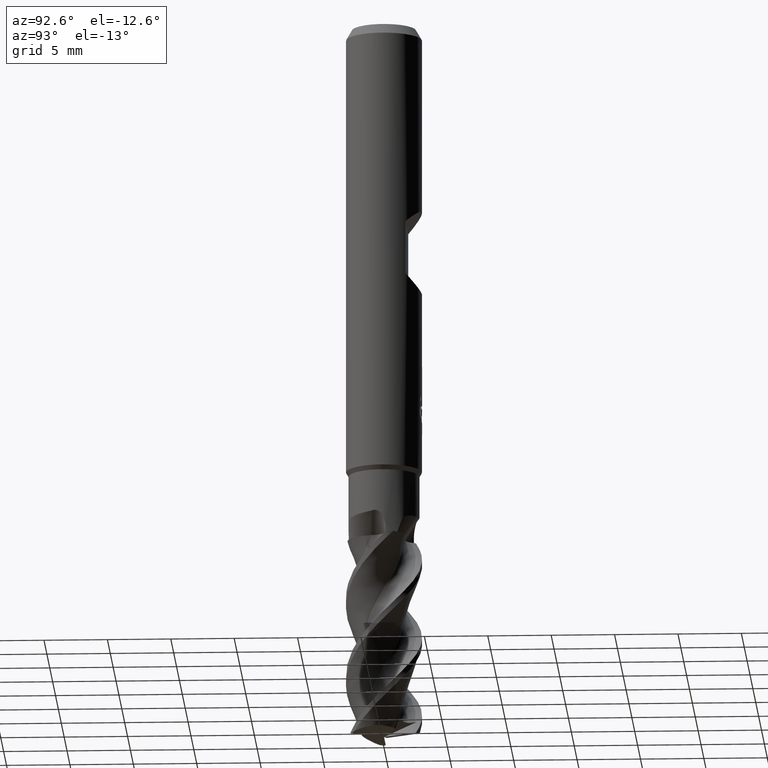
[diagram: clean part render]
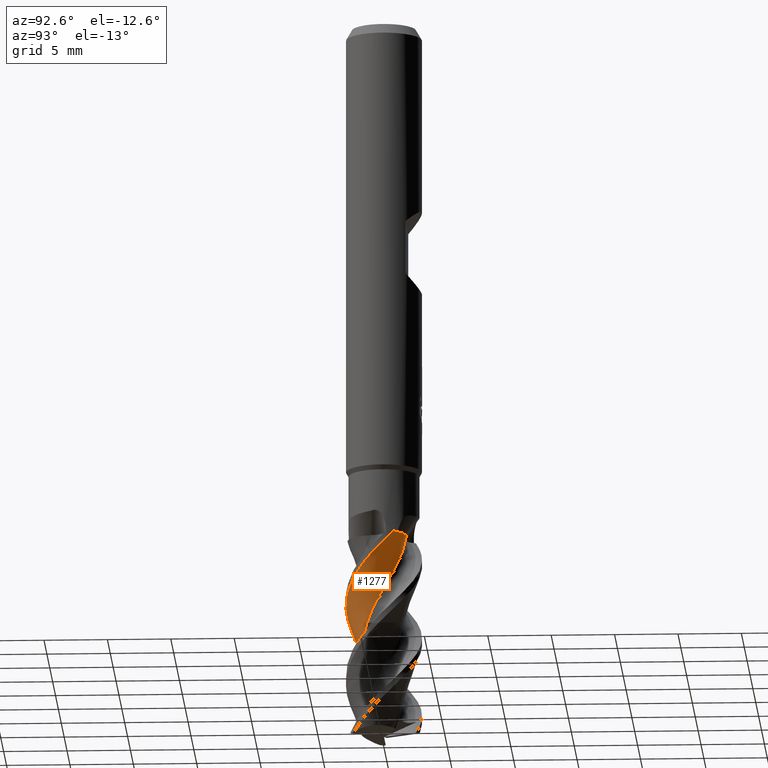
[diagram: same view with one face highlighted and labeled with its STEP entity id]
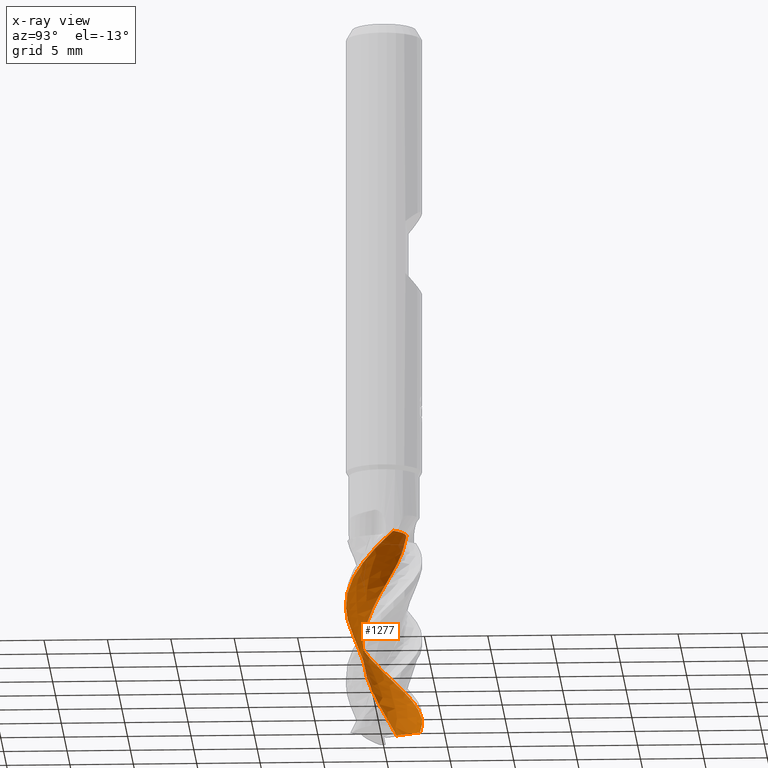
[diagram: x-ray of the same camera — body ghosted, the highlighted face saturated]
A machine part, auxiliary view. The second image highlights one B-rep face of the part: STEP entity #1277.
The next image is the same camera in x-ray: the body ghosted, the highlighted face saturated — about 0% of this face is hidden behind the body in this view.
In plain terms, the highlighted face is a freeform B-spline surface patch.
Its self-contained STEP definition (entity closure, byte-faithful):
#567=EDGE_CURVE('',#783,#701,#1442,.T.);
#569=VERTEX_POINT('',#1444);
#619=EDGE_CURVE('',#1195,#1003,#1496,.T.);
#651=VERTEX_POINT('',#1532);
#701=VERTEX_POINT('',#1587);
#781=EDGE_CURVE('',#569,#651,#1677,.T.);
#783=VERTEX_POINT('',#1679);
#825=EDGE_CURVE('',#1003,#783,#1724,.T.);
#843=EDGE_CURVE('',#701,#651,#1745,.T.);
#867=VERTEX_POINT('',#1773);
#913=EDGE_CURVE('',#867,#1195,#1820,.T.);
#1003=VERTEX_POINT('',#1919);
#1041=EDGE_CURVE('',#569,#867,#1961,.T.);
#1195=VERTEX_POINT('',#2130);
#1277=ADVANCED_FACE('',(#2218),#2219,.T.);
#1442=B_SPLINE_CURVE_WITH_KNOTS('',3,(#3613,#3614,#3615,#3616,#3617,#3618,#3619,#3620,#3621,#3622),.UNSPECIFIED.,.F.,.F.,(4,2,2,2,4),(0.0,0.96895475082892,1.93785581803532,2.65426855663962,3.37066355971909),.UNSPECIFIED.);
#1444=CARTESIAN_POINT('',(-1.42039159701697,0.926261467715888,-56.5825370332337));
#1496=B_SPLINE_CURVE_WITH_KNOTS('',3,(#3896,#3897,#3898,#3899,#3900,#3901,#3902,#3903,#3904,#3905,#3906,#3907,#3908,#3909,#3910,#3911,#3912,#3913,#3914,#3915,#3916,#3917,#3918,#3919,#3920,#3921,#3922,#3923,#3924,#3925,#3926,#3927,#3928,#3929,#3930,#3931,#3932,#3933,#3934,#3935,#3936,#3937,#3938,#3939,#3940,#3941),.UNSPECIFIED.,.F.,.F.,(4,2,2,2,2,2,2,2,2,2,2,2,2,2,2,2,2,2,2,2,2,2,4),(0.0,1.18681386617655,2.08772712133419,2.87410627861396,3.44717918369471,4.20396627043055,4.66828894833923,5.19515368788471,5.63234741721775,5.92520156107975,6.34373032075256,6.59047059806791,6.90376372219082,7.21372972468428,7.46673795894511,7.61161215169149,7.91120142191938,8.13760228375584,8.35933990972439,8.55413478097854,8.85597264351646,9.00915213299087,9.15674801587011),.UNSPECIFIED.);
#1532=CARTESIAN_POINT('',(0.160947652748152,1.68794513397882,-41.0));
#1587=CARTESIAN_POINT('',(0.577222067091525,1.78303410013697,-41.0));
#1677=B_SPLINE_CURVE_WITH_KNOTS('',3,(#5020,#5021,#5022,#5023,#5024,#5025,#5026,#5027,#5028,#5029,#5030,#5031,#5032,#5033,#5034,#5035,#5036,#5037,#5038,#5039,#5040,#5041,#5042,#5043,#5044,#5045,#5046,#5047,#5048,#5049,#5050,#5051,#5052,#5053,#5054,#5055,#5056,#5057,#5058,#5059,#5060,#5061,#5062,#5063),.UNSPECIFIED.,.F.,.F.,(4,2,2,2,2,2,2,2,2,2,2,2,2,2,2,2,2,2,2,2,2,4),(0.0,0.885017349020731,1.38662605880188,2.08791541357296,3.01686208175831,4.18212711694424,6.50876971542661,7.50163395965148,8.55531635972764,9.48888412599825,10.5090480673792,10.9737774729431,11.7676676761723,12.8348264052733,13.972505991047,16.3958470813623,17.0069153292885,19.3091950924024,20.4379834028688,22.4752885034887,23.5431473310724,24.567031306914),.UNSPECIFIED.);
#1679=CARTESIAN_POINT('',(2.87719421331568,0.849207553465416,-41.0));
#1724=B_SPLINE_CURVE_WITH_KNOTS('',3,(#5435,#5436,#5437,#5438,#5439,#5440,#5441,#5442,#5443,#5444,#5445,#5446,#5447,#5448,#5449,#5450,#5451,#5452,#5453,#5454,#5455,#5456,#5457,#5458,#5459,#5460,#5461,#5462,#5463,#5464,#5465,#5466,#5467,#5468,#5469,#5470,#5471,#5472,#5473,#5474,#5475,#5476,#5477,#5478,#5479,#5480),.UNSPECIFIED.,.F.,.F.,(4,2,2,2,2,2,2,2,2,2,2,2,2,2,2,2,2,2,2,2,2,2,4),(0.0,1.18681386617655,2.08772712133419,2.87410627861396,3.44717918369471,4.20396627043055,4.66828894833923,5.19515368788471,5.63234741721775,5.92520156107975,6.34373032075256,6.59047059806791,6.90376372219082,7.21372972468428,7.46673795894511,7.61161215169149,7.91120142191938,8.13760228375584,8.35933990972439,8.55413478097854,8.85597264351646,9.00915213299087,9.15674801587011),.UNSPECIFIED.);
#1745=B_SPLINE_CURVE_WITH_KNOTS('',3,(#5918,#5919,#5920,#5921,#5922,#5923,#5924,#5925,#5926,#5927),.UNSPECIFIED.,.F.,.F.,(4,2,2,2,4),(0.0,0.96895475082892,1.93785581803532,2.65426855663962,3.37066355971909),.UNSPECIFIED.);
#1773=CARTESIAN_POINT('',(0.90839550069056,2.85916329671705,-56.9238124955848));
#1820=B_SPLINE_CURVE_WITH_KNOTS('',3,(#6163,#6164,#6165,#6166,#6167,#6168,#6169,#6170,#6171,#6172,#6173,#6174,#6175,#6176,#6177,#6178,#6179,#6180,#6181,#6182,#6183,#6184,#6185,#6186,#6187,#6188,#6189,#6190,#6191,#6192,#6193,#6194,#6195,#6196,#6197,#6198,#6199,#6200,#6201,#6202,#6203,#6204,#6205,#6206,#6207,#6208),.UNSPECIFIED.,.F.,.F.,(4,2,2,2,2,2,2,2,2,2,2,2,2,2,2,2,2,2,2,2,2,2,4),(0.0,1.18681386617655,2.08772712133419,2.87410627861396,3.44717918369471,4.20396627043055,4.66828894833923,5.19515368788471,5.63234741721775,5.92520156107975,6.34373032075256,6.59047059806791,6.90376372219082,7.21372972468428,7.46673795894511,7.61161215169149,7.91120142191938,8.13760228375584,8.35933990972439,8.55413478097854,8.85597264351646,9.00915213299087,9.15674801587011),.UNSPECIFIED.);
#1919=CARTESIAN_POINT('',(-2.02687034781462E-014,-2.9999348666612,-46.5786657918422));
#1961=B_SPLINE_CURVE_WITH_KNOTS('',3,(#7152,#7153,#7154,#7155,#7156,#7157,#7158,#7159,#7160,#7161,#7162,#7163),.UNSPECIFIED.,.F.,.F.,(4,2,2,2,2,4),(0.0,0.891469568936721,1.72245221178662,2.60084395187054,3.22879166051602,3.91498193644743),.UNSPECIFIED.);
#2130=CARTESIAN_POINT('',(4.43067321431995E-015,2.9999937512498,-56.0001999676261));
#2218=FACE_OUTER_BOUND('',#9154,.T.);
#2219=B_SPLINE_SURFACE_WITH_KNOTS('',3,3,((#9155,#9156,#9157,#9158,#9159,#9160,#9161,#9162,#9163,#9164,#9165,#9166,#9167,#9168,#9169,#9170,#9171,#9172,#9173,#9174,#9175,#9176,#9177,#9178,#9179,#9180,#9181,#9182,#9183,#9184,#9185,#9186,#9187,#9188,#9189,#9190,#9191,#9192,#9193,#9194,#9195,#9196,#9197,#9198,#9199,#9200,#9201,#9202,#9203,#9204,#9205,#9206,#9207),(#9208,#9209,#9210,#9211,#9212,#9213,#9214,#9215,#9216,#9217,#9218,#9219,#9220,#9221,#9222,#9223,#9224,#9225,#9226,#9227,#9228,#9229,#9230,#9231,#9232,#9233,#9234,#9235,#9236,#9237,#9238,#9239,#9240,#9241,#9242,#9243,#9244,#9245,#9246,#9247,#9248,#9249,#9250,#9251,#9252,#9253,#9254,#9255,#9256,#9257,#9258,#9259,#9260),(#9261,#9262,#9263,#9264,#9265,#9266,#9267,#9268,#9269,#9270,#9271,#9272,#9273,#9274,#9275,#9276,#9277,#9278,#9279,#9280,#9281,#9282,#9283,#9284,#9285,#9286,#9287,#9288,#9289,#9290,#9291,#9292,#9293,#9294,#9295,#9296,#9297,#9298,#9299,#9300,#9301,#9302,#9303,#9304,#9305,#9306,#9307,#9308,#9309,#9310,#9311,#9312,#9313),(#9314,#9315,#9316,#9317,#9318,#9319,#9320,#9321,#9322,#9323,#9324,#9325,#9326,#9327,#9328,#9329,#9330,#9331,#9332,#9333,#9334,#9335,#9336,#9337,#9338,#9339,#9340,#9341,#9342,#9343,#9344,#9345,#9346,#9347,#9348,#9349,#9350,#9351,#9352,#9353,#9354,#9355,#9356,#9357,#9358,#9359,#9360,#9361,#9362,#9363,#9364,#9365,#9366),(#9367,#9368,#9369,#9370,#9371,#9372,#9373,#9374,#9375,#9376,#9377,#9378,#9379,#9380,#9381,#9382,#9383,#9384,#9385,#9386,#9387,#9388,#9389,#9390,#9391,#9392,#9393,#9394,#9395,#9396,#9397,#9398,#9399,#9400,#9401,#9402,#9403,#9404,#9405,#9406,#9407,#9408,#9409,#9410,#9411,#9412,#9413,#9414,#9415,#9416,#9417,#9418,#9419),(#9420,#9421,#9422,#9423,#9424,#9425,#9426,#9427,#9428,#9429,#9430,#9431,#9432,#9433,#9434,#9435,#9436,#9437,#9438,#9439,#9440,#9441,#9442,#9443,#9444,#9445,#9446,#9447,#9448,#9449,#9450,#9451,#9452,#9453,#9454,#9455,#9456,#9457,#9458,#9459,#9460,#9461,#9462,#9463,#9464,#9465,#9466,#9467,#9468,#9469,#9470,#9471,#9472),(#9473,#9474,#9475,#9476,#9477,#9478,#9479,#9480,#9481,#9482,#9483,#9484,#9485,#9486,#9487,#9488,#9489,#9490,#9491,#9492,#9493,#9494,#9495,#9496,#9497,#9498,#9499,#9500,#9501,#9502,#9503,#9504,#9505,#9506,#9507,#9508,#9509,#9510,#9511,#9512,#9513,#9514,#9515,#9516,#9517,#9518,#9519,#9520,#9521,#9522,#9523,#9524,#9525)),.UNSPECIFIED.,.F.,.F.,.F.,(4,1,1,1,4),(4,1,2,1,2,1,2,1,2,1,2,1,2,1,2,1,2,1,2,1,2,1,2,1,2,1,2,1,2,1,2,1,2,1,4),(-1.37901021714438,-1.03425766285828,-0.68950510857219,-0.344752554286095,0.0),(0.0,0.439675299220016,0.879350598440031,1.31902589766005,1.75870119688006,2.63805179532009,3.51740239376013,4.39675299220016,5.27610359064019,6.15545418908022,7.03480478752025,7.91415538596028,8.79350598440031,9.67285658284034,10.5522071812804,11.4315577797204,12.3109083781604,13.1902589766005,14.0696095750405,14.9489601734805,15.8283107719206,16.7076613703606,17.5870119688006,18.4663625672407,19.3457131656807,20.2250637641207,21.1044143625608,21.9837649610008,22.8631155594408,23.7424661578808,24.6218167563209,25.5011673547609,26.3805179532009,27.259868551641,28.139219150081),.UNSPECIFIED.);
#3613=CARTESIAN_POINT('',(3.0499,0.596377839506935,-41.0));
#3614=CARTESIAN_POINT('',(2.88452718479399,0.873814478333711,-41.0));
#3615=CARTESIAN_POINT('',(2.66654707057443,1.11629804554695,-41.0));
#3616=CARTESIAN_POINT('',(2.14991992996247,1.50404754438312,-41.0));
#3617=CARTESIAN_POINT('',(1.85621746546397,1.6456110462641,-41.0));
#3618=CARTESIAN_POINT('',(1.31253208992966,1.78700582494877,-41.0));
#3619=CARTESIAN_POINT('',(1.07394244983567,1.81341913516998,-41.0));
#3620=CARTESIAN_POINT('',(0.596615004112346,1.79722417291801,-41.0));
#3621=CARTESIAN_POINT('',(0.360369970780077,1.75470219605916,-41.0));
#3622=CARTESIAN_POINT('',(0.133863776207021,1.67907480486067,-41.0));
#3896=CARTESIAN_POINT('',(0.979579577827858,2.83556411507527,-57.0));
#3897=CARTESIAN_POINT('',(0.71719365798403,2.92620660927809,-56.7181479389703));
#3898=CARTESIAN_POINT('',(0.441151435724606,2.98079276843668,-56.4332463074155));
#3899=CARTESIAN_POINT('',(-0.0549560185831617,3.00714177831958,-55.9447799200475));
#3900=CARTESIAN_POINT('',(-0.32595033799743,2.99894855102072,-55.6844845238131));
#3901=CARTESIAN_POINT('',(-0.904741344973544,2.87359532957463,-55.0842136930421));
#3902=CARTESIAN_POINT('',(-1.1666803925667,2.77788707433469,-54.8003626416769));
#3903=CARTESIAN_POINT('',(-1.59227379842209,2.55067147847844,-54.3212740822138));
#3904=CARTESIAN_POINT('',(-1.75926808069844,2.43851439533491,-54.1300384897134));
#3905=CARTESIAN_POINT('',(-2.122960274331,2.13664686215631,-53.6593095099081));
#3906=CARTESIAN_POINT('',(-2.30492749867408,1.93860407916595,-53.3856380693996));
#3907=CARTESIAN_POINT('',(-2.55148979146837,1.5863415634527,-52.9501366157243));
#3908=CARTESIAN_POINT('',(-2.63491807447123,1.44384684596639,-52.7849576283918));
#3909=CARTESIAN_POINT('',(-2.78799194599705,1.12362080293085,-52.4371292301852));
#3910=CARTESIAN_POINT('',(-2.89047088878013,0.869451259476933,-52.1736836461687));
#3911=CARTESIAN_POINT('',(-3.0005497863646,0.269986745713655,-51.5556210775572));
#3912=CARTESIAN_POINT('',(-3.01297812970647,-0.00923035115850118,-51.2714624767868));
#3913=CARTESIAN_POINT('',(-2.96813406671791,-0.474444727038535,-50.8084239465581));
#3914=CARTESIAN_POINT('',(-2.93328151264795,-0.656457968693923,-50.631909102236));
#3915=CARTESIAN_POINT('',(-2.8059256284234,-1.09483182169029,-50.1777624425344));
#3916=CARTESIAN_POINT('',(-2.69708767648069,-1.34019247743425,-49.9047217754272));
#3917=CARTESIAN_POINT('',(-2.47639092248733,-1.70051927055537,-49.4764430816614));
#3918=CARTESIAN_POINT('',(-2.38357396578146,-1.82855435594191,-49.3179313437088));
#3919=CARTESIAN_POINT('',(-2.14885218522961,-2.10308355255398,-48.962664272943));
#3920=CARTESIAN_POINT('',(-1.97122220124027,-2.28001451810777,-48.7225353964279));
#3921=CARTESIAN_POINT('',(-1.49933873314275,-2.61426080012834,-48.1381209123788));
#3922=CARTESIAN_POINT('',(-1.24099780573186,-2.74657051386172,-47.8424136402145));
#3923=CARTESIAN_POINT('',(-0.742463413297289,-2.91622979158941,-47.3182024695356));
#3924=CARTESIAN_POINT('',(-0.513157093285278,-2.96521200524597,-47.095774566398));
#3925=CARTESIAN_POINT('',(-0.141993897412537,-2.99964561303826,-46.7226823914267));
#3926=CARTESIAN_POINT('',(-0.00671453871522948,-3.0029462508063,-46.5857249188196));
#3927=CARTESIAN_POINT('',(0.405906413078365,-2.98535230259556,-46.1657353867895));
#3928=CARTESIAN_POINT('',(0.684033398735629,-2.93470290138208,-45.8799922209931));
#3929=CARTESIAN_POINT('',(1.15721480861542,-2.77606960497176,-45.3918906438849));
#3930=CARTESIAN_POINT('',(1.38248020132308,-2.67723957498797,-45.1537028825426));
#3931=CARTESIAN_POINT('',(1.85169960122965,-2.37630327917132,-44.5890322119776));
#3932=CARTESIAN_POINT('',(2.06347162276584,-2.19528766771226,-44.3055150073364));
#3933=CARTESIAN_POINT('',(2.4101468918386,-1.80295458162178,-43.7853459575016));
#3934=CARTESIAN_POINT('',(2.54768571663284,-1.60283370229987,-43.5547396924249));
#3935=CARTESIAN_POINT('',(2.83668898629013,-1.04757166171859,-42.9262519725182));
#3936=CARTESIAN_POINT('',(2.94759682156749,-0.677744108176058,-42.5325384547156));
#3937=CARTESIAN_POINT('',(3.00459074853584,-0.100202076685813,-41.9621280473436));
#3938=CARTESIAN_POINT('',(3.0049441211314,0.0942212598865478,-41.7754980222959));
#3939=CARTESIAN_POINT('',(2.9672449257254,0.480841461774525,-41.3859103800486));
#3940=CARTESIAN_POINT('',(2.93077084264697,0.667689195517684,-41.1923914299983));
#3941=CARTESIAN_POINT('',(2.8771942133157,0.849207553465387,-41.0));
#5020=CARTESIAN_POINT('',(-1.09013916182854,1.29803741004545,-57.4800642857864));
#5021=CARTESIAN_POINT('',(-1.20217326477501,1.20381351211147,-57.2239419930381));
#5022=CARTESIAN_POINT('',(-1.30035999714349,1.09715168891359,-56.9599400188957));
#5023=CARTESIAN_POINT('',(-1.4297598332936,0.915372277575627,-56.5563551995804));
#5024=CARTESIAN_POINT('',(-1.47238705466426,0.845455427856705,-56.4099734529709));
#5025=CARTESIAN_POINT('',(-1.56275638676232,0.668068050111887,-56.0624295744415));
#5026=CARTESIAN_POINT('',(-1.60266536681942,0.563878543166256,-55.8791376622117));
#5027=CARTESIAN_POINT('',(-1.67425716118093,0.305444609749824,-55.4061657707518));
#5028=CARTESIAN_POINT('',(-1.69511746663936,0.154878943511217,-55.1276403565647));
#5029=CARTESIAN_POINT('',(-1.69649931554765,-0.183674705890628,-54.5173397860729));
#5030=CARTESIAN_POINT('',(-1.66652894527428,-0.33582026264803,-54.2624551053343));
#5031=CARTESIAN_POINT('',(-1.56304880611532,-0.702547926842267,-53.6009019541635));
#5032=CARTESIAN_POINT('',(-1.44157461302342,-0.930128938460261,-53.1227197965108));
#5033=CARTESIAN_POINT('',(-1.19786343882351,-1.20490824538406,-52.48852343667));
#5034=CARTESIAN_POINT('',(-1.10491871901916,-1.29394226033991,-52.2753634430631));
#5035=CARTESIAN_POINT('',(-0.854185675840284,-1.47289390208987,-51.7235783670694));
#5036=CARTESIAN_POINT('',(-0.712155408099056,-1.54739411082186,-51.4294163952399));
#5037=CARTESIAN_POINT('',(-0.426204190533041,-1.64752120134998,-50.8927474851898));
#5038=CARTESIAN_POINT('',(-0.295156495945828,-1.67497123206893,-50.6745340781834));
#5039=CARTESIAN_POINT('',(-0.00521126321380827,-1.70181151468923,-50.1616668203978));
#5040=CARTESIAN_POINT('',(0.145824465243559,-1.69581490045706,-49.8850056000044));
#5041=CARTESIAN_POINT('',(0.359793930799451,-1.65859496660042,-49.4934118350805));
#5042=CARTESIAN_POINT('',(0.426821604636083,-1.64272991448721,-49.3708206239994));
#5043=CARTESIAN_POINT('',(0.607619881978407,-1.58747094447091,-49.0413934020809));
#5044=CARTESIAN_POINT('',(0.713435218014812,-1.54220608114099,-48.8523571506708));
#5045=CARTESIAN_POINT('',(0.958562000090694,-1.4071773215021,-48.357337367079));
#5046=CARTESIAN_POINT('',(1.08689594301995,-1.31115022895499,-48.0632739090978));
#5047=CARTESIAN_POINT('',(1.31928722644221,-1.07904461407481,-47.4745549665969));
#5048=CARTESIAN_POINT('',(1.40023145710393,-0.96312847858896,-47.2425228902178));
#5049=CARTESIAN_POINT('',(1.59063697690659,-0.638545378799517,-46.5882248434541));
#5050=CARTESIAN_POINT('',(1.67121824718336,-0.390244300309775,-46.1042407343397));
#5051=CARTESIAN_POINT('',(1.69556977292869,-0.0643618752629071,-45.5417859567774));
#5052=CARTESIAN_POINT('',(1.6964905395989,-0.00165247038277204,-45.4378078020501));
#5053=CARTESIAN_POINT('',(1.68424273757918,0.310238687835598,-44.8981557038537));
#5054=CARTESIAN_POINT('',(1.62294172782106,0.550707954828196,-44.438327229139));
#5055=CARTESIAN_POINT('',(1.45592516714741,0.877472661110709,-43.7981032096639));
#5056=CARTESIAN_POINT('',(1.39196632397464,0.974738390111211,-43.6070496429242));
#5057=CARTESIAN_POINT('',(1.17885262552748,1.237295535366,-43.0090708600317));
#5058=CARTESIAN_POINT('',(1.00939634433774,1.38115255828713,-42.5990255698904));
#5059=CARTESIAN_POINT('',(0.710740775999785,1.54380541861676,-42.0092835624457));
#5060=CARTESIAN_POINT('',(0.60564379168884,1.58755519315151,-41.821505654456));
#5061=CARTESIAN_POINT('',(0.383156985221953,1.65513294604564,-41.4088902177797));
#5062=CARTESIAN_POINT('',(0.272236133322133,1.67712520905207,-41.202855613651));
#5063=CARTESIAN_POINT('',(0.160945486046761,1.68794534463588,-40.9999960505562));
#5435=CARTESIAN_POINT('',(0.979579577827858,2.83556411507527,-57.0));
#5436=CARTESIAN_POINT('',(0.71719365798403,2.92620660927809,-56.7181479389703));
#5437=CARTESIAN_POINT('',(0.441151435724606,2.98079276843668,-56.4332463074155));
#5438=CARTESIAN_POINT('',(-0.0549560185831617,3.00714177831958,-55.9447799200475));
#5439=CARTESIAN_POINT('',(-0.32595033799743,2.99894855102072,-55.6844845238131));
#5440=CARTESIAN_POINT('',(-0.904741344973544,2.87359532957463,-55.0842136930421));
#5441=CARTESIAN_POINT('',(-1.1666803925667,2.77788707433469,-54.8003626416769));
#5442=CARTESIAN_POINT('',(-1.59227379842209,2.55067147847844,-54.3212740822138));
#5443=CARTESIAN_POINT('',(-1.75926808069844,2.43851439533491,-54.1300384897134));
#5444=CARTESIAN_POINT('',(-2.122960274331,2.13664686215631,-53.6593095099081));
#5445=CARTESIAN_POINT('',(-2.30492749867408,1.93860407916595,-53.3856380693996));
#5446=CARTESIAN_POINT('',(-2.55148979146837,1.5863415634527,-52.9501366157243));
#5447=CARTESIAN_POINT('',(-2.63491807447123,1.44384684596639,-52.7849576283918));
#5448=CARTESIAN_POINT('',(-2.78799194599705,1.12362080293085,-52.4371292301852));
#5449=CARTESIAN_POINT('',(-2.89047088878013,0.869451259476933,-52.1736836461687));
#5450=CARTESIAN_POINT('',(-3.0005497863646,0.269986745713655,-51.5556210775572));
#5451=CARTESIAN_POINT('',(-3.01297812970647,-0.00923035115850118,-51.2714624767868));
#5452=CARTESIAN_POINT('',(-2.96813406671791,-0.474444727038535,-50.8084239465581));
#5453=CARTESIAN_POINT('',(-2.93328151264795,-0.656457968693923,-50.631909102236));
#5454=CARTESIAN_POINT('',(-2.8059256284234,-1.09483182169029,-50.1777624425344));
#5455=CARTESIAN_POINT('',(-2.69708767648069,-1.34019247743425,-49.9047217754272));
#5456=CARTESIAN_POINT('',(-2.47639092248733,-1.70051927055537,-49.4764430816614));
#5457=CARTESIAN_POINT('',(-2.38357396578146,-1.82855435594191,-49.3179313437088));
#5458=CARTESIAN_POINT('',(-2.14885218522961,-2.10308355255398,-48.962664272943));
#5459=CARTESIAN_POINT('',(-1.97122220124027,-2.28001451810777,-48.7225353964279));
#5460=CARTESIAN_POINT('',(-1.49933873314275,-2.61426080012834,-48.1381209123788));
#5461=CARTESIAN_POINT('',(-1.24099780573186,-2.74657051386172,-47.8424136402145));
#5462=CARTESIAN_POINT('',(-0.742463413297289,-2.91622979158941,-47.3182024695356));
#5463=CARTESIAN_POINT('',(-0.513157093285278,-2.96521200524597,-47.095774566398));
#5464=CARTESIAN_POINT('',(-0.141993897412537,-2.99964561303826,-46.7226823914267));
#5465=CARTESIAN_POINT('',(-0.00671453871522948,-3.0029462508063,-46.5857249188196));
#5466=CARTESIAN_POINT('',(0.405906413078365,-2.98535230259556,-46.1657353867895));
#5467=CARTESIAN_POINT('',(0.684033398735629,-2.93470290138208,-45.8799922209931));
#5468=CARTESIAN_POINT('',(1.15721480861542,-2.77606960497176,-45.3918906438849));
#5469=CARTESIAN_POINT('',(1.38248020132308,-2.67723957498797,-45.1537028825426));
#5470=CARTESIAN_POINT('',(1.85169960122965,-2.37630327917132,-44.5890322119776));
#5471=CARTESIAN_POINT('',(2.06347162276584,-2.19528766771226,-44.3055150073364));
#5472=CARTESIAN_POINT('',(2.4101468918386,-1.80295458162178,-43.7853459575016));
#5473=CARTESIAN_POINT('',(2.54768571663284,-1.60283370229987,-43.5547396924249));
#5474=CARTESIAN_POINT('',(2.83668898629013,-1.04757166171859,-42.9262519725182));
#5475=CARTESIAN_POINT('',(2.94759682156749,-0.677744108176058,-42.5325384547156));
#5476=CARTESIAN_POINT('',(3.00459074853584,-0.100202076685813,-41.9621280473436));
#5477=CARTESIAN_POINT('',(3.0049441211314,0.0942212598865478,-41.7754980222959));
#5478=CARTESIAN_POINT('',(2.9672449257254,0.480841461774525,-41.3859103800486));
#5479=CARTESIAN_POINT('',(2.93077084264697,0.667689195517684,-41.1923914299983));
#5480=CARTESIAN_POINT('',(2.8771942133157,0.849207553465387,-41.0));
#5918=CARTESIAN_POINT('',(3.0499,0.596377839506935,-41.0));
#5919=CARTESIAN_POINT('',(2.88452718479399,0.873814478333711,-41.0));
#5920=CARTESIAN_POINT('',(2.66654707057443,1.11629804554695,-41.0));
#5921=CARTESIAN_POINT('',(2.14991992996247,1.50404754438312,-41.0));
#5922=CARTESIAN_POINT('',(1.85621746546397,1.6456110462641,-41.0));
#5923=CARTESIAN_POINT('',(1.31253208992966,1.78700582494877,-41.0));
#5924=CARTESIAN_POINT('',(1.07394244983567,1.81341913516998,-41.0));
#5925=CARTESIAN_POINT('',(0.596615004112346,1.79722417291801,-41.0));
#5926=CARTESIAN_POINT('',(0.360369970780077,1.75470219605916,-41.0));
#5927=CARTESIAN_POINT('',(0.133863776207021,1.67907480486067,-41.0));
#6163=CARTESIAN_POINT('',(0.979579577827858,2.83556411507527,-57.0));
#6164=CARTESIAN_POINT('',(0.71719365798403,2.92620660927809,-56.7181479389703));
#6165=CARTESIAN_POINT('',(0.441151435724606,2.98079276843668,-56.4332463074155));
#6166=CARTESIAN_POINT('',(-0.0549560185831617,3.00714177831958,-55.9447799200475));
#6167=CARTESIAN_POINT('',(-0.32595033799743,2.99894855102072,-55.6844845238131));
#6168=CARTESIAN_POINT('',(-0.904741344973544,2.87359532957463,-55.0842136930421));
#6169=CARTESIAN_POINT('',(-1.1666803925667,2.77788707433469,-54.8003626416769));
#6170=CARTESIAN_POINT('',(-1.59227379842209,2.55067147847844,-54.3212740822138));
#6171=CARTESIAN_POINT('',(-1.75926808069844,2.43851439533491,-54.1300384897134));
#6172=CARTESIAN_POINT('',(-2.122960274331,2.13664686215631,-53.6593095099081));
#6173=CARTESIAN_POINT('',(-2.30492749867408,1.93860407916595,-53.3856380693996));
#6174=CARTESIAN_POINT('',(-2.55148979146837,1.5863415634527,-52.9501366157243));
#6175=CARTESIAN_POINT('',(-2.63491807447123,1.44384684596639,-52.7849576283918));
#6176=CARTESIAN_POINT('',(-2.78799194599705,1.12362080293085,-52.4371292301852));
#6177=CARTESIAN_POINT('',(-2.89047088878013,0.869451259476933,-52.1736836461687));
#6178=CARTESIAN_POINT('',(-3.0005497863646,0.269986745713655,-51.5556210775572));
#6179=CARTESIAN_POINT('',(-3.01297812970647,-0.00923035115850118,-51.2714624767868));
#6180=CARTESIAN_POINT('',(-2.96813406671791,-0.474444727038535,-50.8084239465581));
#6181=CARTESIAN_POINT('',(-2.93328151264795,-0.656457968693923,-50.631909102236));
#6182=CARTESIAN_POINT('',(-2.8059256284234,-1.09483182169029,-50.1777624425344));
#6183=CARTESIAN_POINT('',(-2.69708767648069,-1.34019247743425,-49.9047217754272));
#6184=CARTESIAN_POINT('',(-2.47639092248733,-1.70051927055537,-49.4764430816614));
#6185=CARTESIAN_POINT('',(-2.38357396578146,-1.82855435594191,-49.3179313437088));
#6186=CARTESIAN_POINT('',(-2.14885218522961,-2.10308355255398,-48.962664272943));
#6187=CARTESIAN_POINT('',(-1.97122220124027,-2.28001451810777,-48.7225353964279));
#6188=CARTESIAN_POINT('',(-1.49933873314275,-2.61426080012834,-48.1381209123788));
#6189=CARTESIAN_POINT('',(-1.24099780573186,-2.74657051386172,-47.8424136402145));
#6190=CARTESIAN_POINT('',(-0.742463413297289,-2.91622979158941,-47.3182024695356));
#6191=CARTESIAN_POINT('',(-0.513157093285278,-2.96521200524597,-47.095774566398));
#6192=CARTESIAN_POINT('',(-0.141993897412537,-2.99964561303826,-46.7226823914267));
#6193=CARTESIAN_POINT('',(-0.00671453871522948,-3.0029462508063,-46.5857249188196));
#6194=CARTESIAN_POINT('',(0.405906413078365,-2.98535230259556,-46.1657353867895));
#6195=CARTESIAN_POINT('',(0.684033398735629,-2.93470290138208,-45.8799922209931));
#6196=CARTESIAN_POINT('',(1.15721480861542,-2.77606960497176,-45.3918906438849));
#6197=CARTESIAN_POINT('',(1.38248020132308,-2.67723957498797,-45.1537028825426));
#6198=CARTESIAN_POINT('',(1.85169960122965,-2.37630327917132,-44.5890322119776));
#6199=CARTESIAN_POINT('',(2.06347162276584,-2.19528766771226,-44.3055150073364));
#6200=CARTESIAN_POINT('',(2.4101468918386,-1.80295458162178,-43.7853459575016));
#6201=CARTESIAN_POINT('',(2.54768571663284,-1.60283370229987,-43.5547396924249));
#6202=CARTESIAN_POINT('',(2.83668898629013,-1.04757166171859,-42.9262519725182));
#6203=CARTESIAN_POINT('',(2.94759682156749,-0.677744108176058,-42.5325384547156));
#6204=CARTESIAN_POINT('',(3.00459074853584,-0.100202076685813,-41.9621280473436));
#6205=CARTESIAN_POINT('',(3.0049441211314,0.0942212598865478,-41.7754980222959));
#6206=CARTESIAN_POINT('',(2.9672449257254,0.480841461774525,-41.3859103800486));
#6207=CARTESIAN_POINT('',(2.93077084264697,0.667689195517684,-41.1923914299983));
#6208=CARTESIAN_POINT('',(2.8771942133157,0.849207553465387,-41.0));
#7152=CARTESIAN_POINT('',(-1.42424008428032,0.898952385994601,-56.5858907416316));
#7153=CARTESIAN_POINT('',(-1.38468780581258,1.19121291793181,-56.5495397046629));
#7154=CARTESIAN_POINT('',(-1.29405473122574,1.47443287549798,-56.5290309572591));
#7155=CARTESIAN_POINT('',(-1.01441985674944,1.97484132682767,-56.5264207731752));
#7156=CARTESIAN_POINT('',(-0.837067722495643,2.18683611205666,-56.5418850211885));
#7157=CARTESIAN_POINT('',(-0.399167208927222,2.54372518043251,-56.6071251384609));
#7158=CARTESIAN_POINT('',(-0.142519612916026,2.67758401725225,-56.6575961884127));
#7159=CARTESIAN_POINT('',(0.326111574217638,2.8196655119001,-56.7663811761138));
#7160=CARTESIAN_POINT('',(0.527242123140118,2.85202396231807,-56.8177200931161));
#7161=CARTESIAN_POINT('',(0.949145582054162,2.86721845234175,-56.9339704690988));
#7162=CARTESIAN_POINT('',(1.16856624424371,2.84515902668994,-56.999296737368));
#7163=CARTESIAN_POINT('',(1.38159174623523,2.79646147734498,-57.0671511052809));
#9154=EDGE_LOOP('',(#10802,#10803,#10804,#10805,#10806,#10807,#10808));
#9155=CARTESIAN_POINT('',(2.163744879875,-2.24780072386889,-63.0));
#9156=CARTESIAN_POINT('',(2.18960796688226,-2.22282365751091,-62.8541654416654));
#9157=CARTESIAN_POINT('',(2.29334665090112,-2.12322594822446,-62.5625301775301));
#9158=CARTESIAN_POINT('',(2.48420366904608,-1.895149528986,-62.2708963303413));
#9159=CARTESIAN_POINT('',(2.69116964576375,-1.58679082850255,-61.9791955776101));
#9160=CARTESIAN_POINT('',(2.85708773954463,-1.28168694263435,-61.6874871527598));
#9161=CARTESIAN_POINT('',(2.96111366310518,-0.991017896078036,-61.3958077000311));
#9162=CARTESIAN_POINT('',(3.08252339368616,-0.562376365352259,-60.9583306286394));
#9163=CARTESIAN_POINT('',(3.16029523365446,0.0169973477277596,-60.37501893645));
#9164=CARTESIAN_POINT('',(3.07373300241698,0.616672149987036,-59.791707501256));
#9165=CARTESIAN_POINT('',(2.8877806731297,1.22015027913822,-59.2083563094687));
#9166=CARTESIAN_POINT('',(2.62305429976354,1.76371407033593,-58.6249941944772));
#9167=CARTESIAN_POINT('',(2.22144354833166,2.21166982795776,-58.0416741331563));
#9168=CARTESIAN_POINT('',(1.73776047016301,2.60895580220061,-57.4583462198669));
#9169=CARTESIAN_POINT('',(1.21864333759617,2.91669993916289,-56.8750019152117));
#9170=CARTESIAN_POINT('',(0.635090002783633,3.0696664600235,-56.2916824349484));
#9171=CARTESIAN_POINT('',(0.012787951544621,3.13468856576009,-55.7083474939088));
#9172=CARTESIAN_POINT('',(-0.589047098478181,3.10556157947025,-55.1249988483692));
#9173=CARTESIAN_POINT('',(-1.16002474165965,2.91216603981673,-54.5416797551002));
#9174=CARTESIAN_POINT('',(-1.71572379214213,2.6235192021796,-53.9583462996027));
#9175=CARTESIAN_POINT('',(-2.20239724517396,2.26741859713274,-53.3749983189673));
#9176=CARTESIAN_POINT('',(-2.57239738094404,1.79138753824406,-52.7916790036906));
#9177=CARTESIAN_POINT('',(-2.87708030423396,1.24455487120052,-52.2083453845329));
#9178=CARTESIAN_POINT('',(-3.08707978753103,0.679426763853069,-51.6249974177187));
#9179=CARTESIAN_POINT('',(-3.13371718067242,0.0783209819656203,-51.0416781758718));
#9180=CARTESIAN_POINT('',(-3.08681857722683,-0.545962252836889,-50.4583445242132));
#9181=CARTESIAN_POINT('',(-2.95080263724504,-1.13333802615233,-49.8749965037038));
#9182=CARTESIAN_POINT('',(-2.65863089536722,-1.66072166477718,-49.2916772448966));
#9183=CARTESIAN_POINT('',(-2.27563228823044,-2.1559265112019,-48.7083436199073));
#9184=CARTESIAN_POINT('',(-1.83858039650568,-2.57124769477813,-48.1249956221002));
#9185=CARTESIAN_POINT('',(-1.30423526724678,-2.85048867827438,-47.5416763638471));
#9186=CARTESIAN_POINT('',(-0.711809263122816,-3.05284287799539,-46.958342727205));
#9187=CARTESIAN_POINT('',(-0.11827058825183,-3.15875050001915,-46.3749947248497));
#9188=CARTESIAN_POINT('',(0.481520682044624,-3.09749175266383,-45.7916754726918));
#9189=CARTESIAN_POINT('',(1.0874410177018,-2.94006742070462,-45.2083418427353));
#9190=CARTESIAN_POINT('',(1.64116207521471,-2.7015322827666,-44.6249938328833));
#9191=CARTESIAN_POINT('',(2.10801422172224,-2.32004066165534,-44.0416745715516));
#9192=CARTESIAN_POINT('',(2.52701260220965,-1.85491913449597,-43.4583409482181));
#9193=CARTESIAN_POINT('',(2.85778742037942,-1.35083749277448,-42.8749929695002));
#9194=CARTESIAN_POINT('',(3.03732318616173,-0.77523961067097,-42.2916736772584));
#9195=CARTESIAN_POINT('',(3.13083785439838,-0.15618796390869,-41.7083399401458));
#9196=CARTESIAN_POINT('',(3.12923300015834,0.446696159051698,-41.124991873616));
#9197=CARTESIAN_POINT('',(2.96207349887498,1.02587794196373,-40.5416729009461));
#9198=CARTESIAN_POINT('',(2.69920309025708,1.59399049107578,-39.9583398005629));
#9199=CARTESIAN_POINT('',(2.36574595828435,2.09643957949186,-39.3749918944136));
#9200=CARTESIAN_POINT('',(1.90710790632416,2.48780623129471,-38.7916713446107));
#9201=CARTESIAN_POINT('',(1.37497578150497,2.817067901006,-38.2083357537102));
#9202=CARTESIAN_POINT('',(0.820377919776441,3.0526606973405,-37.6249878697094));
#9203=CARTESIAN_POINT('',(0.220925388536291,3.12700718783553,-37.0416729233742));
#9204=CARTESIAN_POINT('',(-0.407231482716255,3.1083079289736,-36.458344730443));
#9205=CARTESIAN_POINT('',(-1.00050776403516,2.99810645139383,-35.874995740829));
#9206=CARTESIAN_POINT('',(-1.53394337034266,2.73317570167452,-35.291675489883));
#9207=CARTESIAN_POINT('',(-1.78593658311065,2.55709723410293,-35.0000123829075));
#9208=CARTESIAN_POINT('',(2.2925523573668,-1.99352284405387,-63.0));
#9209=CARTESIAN_POINT('',(2.31465545053818,-1.96664113276701,-62.8541456902821));
#9210=CARTESIAN_POINT('',(2.4054895014026,-1.86058975666723,-62.5626137494084));
#9211=CARTESIAN_POINT('',(2.5708186860618,-1.62307383022046,-62.2711082329359));
#9212=CARTESIAN_POINT('',(2.74543775486728,-1.30646606548536,-61.9793003466487));
#9213=CARTESIAN_POINT('',(2.88035172460828,-0.996447167171599,-61.6874514539022));
#9214=CARTESIAN_POINT('',(2.95618958796581,-0.705694462324181,-61.3957245441015));
#9215=CARTESIAN_POINT('',(3.03688296001005,-0.279701227861055,-60.9583219384519));
#9216=CARTESIAN_POINT('',(3.06215272419853,0.288620445297621,-60.3750842991034));
#9217=CARTESIAN_POINT('',(2.92656625709863,0.862471346886732,-59.7918516297773));
#9218=CARTESIAN_POINT('',(2.69449766114624,1.43161286235471,-59.2084421404859));
#9219=CARTESIAN_POINT('',(2.39098682730718,1.93573362181175,-58.6249830476898));
#9220=CARTESIAN_POINT('',(1.96303770974255,2.33531795499406,-58.0417084845849));
#9221=CARTESIAN_POINT('',(1.45997863089458,2.67894959235327,-57.4583996467797));
#9222=CARTESIAN_POINT('',(0.930190948209188,2.9325086523706,-56.875018867402));
#9223=CARTESIAN_POINT('',(0.351320445221712,3.03046690601142,-56.2917478915533));
#9224=CARTESIAN_POINT('',(-0.25759458491685,3.04006037094604,-55.7084086004895));
#9225=CARTESIAN_POINT('',(-0.838512892203305,2.95990731906982,-55.1250087390765));
#9226=CARTESIAN_POINT('',(-1.3753206646579,2.72319342469565,-54.5417391942442));
#9227=CARTESIAN_POINT('',(-1.88929063397837,2.39562233947854,-53.9584063131653));
#9228=CARTESIAN_POINT('',(-2.33036620827912,2.00843112380056,-53.3750093616002));
#9229=CARTESIAN_POINT('',(-2.64797860594061,1.51507256321011,-52.7917389174911));
#9230=CARTESIAN_POINT('',(-2.89640994330652,0.958743224204637,-52.2084053462016));
#9231=CARTESIAN_POINT('',(-3.05124010264774,0.392781433397547,-51.625008467198));
#9232=CARTESIAN_POINT('',(-3.04460850151312,-0.193933064594185,-51.0417383239323));
#9233=CARTESIAN_POINT('',(-2.9455251018848,-0.795157396928637,-50.4584046004715));
#9234=CARTESIAN_POINT('',(-2.76300165173505,-1.35283950499696,-49.8750074818718));
#9235=CARTESIAN_POINT('',(-2.43429735645654,-1.83887064929865,-49.291737268469));
#9236=CARTESIAN_POINT('',(-2.02044531810657,-2.28608661295949,-48.7084036674139));
#9237=CARTESIAN_POINT('',(-1.56093243173051,-2.65100808664121,-48.125006647461));
#9238=CARTESIAN_POINT('',(-1.01887339641973,-2.87561236945314,-47.5417364397101));
#9239=CARTESIAN_POINT('',(-0.427128879874544,-3.02091919994067,-46.9584027791338));
#9240=CARTESIAN_POINT('',(0.157395836424607,-3.07239002725341,-46.3750057396956));
#9241=CARTESIAN_POINT('',(0.733530948187316,-2.96128076355961,-45.7917355617493));
#9242=CARTESIAN_POINT('',(1.30746000884117,-2.7566179782411,-45.2084019317928));
#9243=CARTESIAN_POINT('',(1.82367325208226,-2.47761322854668,-44.6250048778308));
#9244=CARTESIAN_POINT('',(2.24332398183898,-2.06754545189946,-44.0417346396234));
#9245=CARTESIAN_POINT('',(2.6096036598301,-1.58061870562704,-43.458401040224));
#9246=CARTESIAN_POINT('',(2.88678214968789,-1.06341868884096,-42.8750040714332));
#9247=CARTESIAN_POINT('',(3.01117803508716,-0.489969330408042,-42.291733709836));
#9248=CARTESIAN_POINT('',(3.04867693130375,0.118241859129886,-41.7083996855142));
#9249=CARTESIAN_POINT('',(2.99511641300519,0.702552260676044,-41.1250024579809));
#9250=CARTESIAN_POINT('',(2.78312722222526,1.24957573025487,-40.5417334915575));
#9251=CARTESIAN_POINT('',(2.47947973836668,1.77779354682471,-39.9584019708254));
#9252=CARTESIAN_POINT('',(2.11287919359147,2.23611579591277,-39.375004960539));
#9253=CARTESIAN_POINT('',(1.63453796195077,2.57594026434196,-38.7917291668448));
#9254=CARTESIAN_POINT('',(1.09034950619019,2.84946098686297,-38.2083877360219));
#9255=CARTESIAN_POINT('',(0.532388322610459,3.03000583715621,-37.6249927852836));
#9256=CARTESIAN_POINT('',(-0.0551136845462321,3.05038684961899,-37.041740463198));
#9257=CARTESIAN_POINT('',(-0.662522580425533,2.9783304621619,-36.4584263435225));
#9258=CARTESIAN_POINT('',(-1.2281587896065,2.82032872267942,-35.8750170207624));
#9259=CARTESIAN_POINT('',(-1.72236724801751,2.51746254928907,-35.291720927246));
#9260=CARTESIAN_POINT('',(-1.95152050649282,2.32508307730866,-35.0000546370342));
#9261=CARTESIAN_POINT('',(2.46163412326509,-1.44019827234479,-63.0));
#9262=CARTESIAN_POINT('',(2.47555523879779,-1.41081640282091,-62.8541088274152));
#9263=CARTESIAN_POINT('',(2.53833701151106,-1.29635075022586,-62.562769723515));
#9264=CARTESIAN_POINT('',(2.64933137966825,-1.04884307425713,-62.2715037159865));
#9265=CARTESIAN_POINT('',(2.75639352136329,-0.726997577186809,-61.979495882143));
#9266=CARTESIAN_POINT('',(2.82759622219723,-0.417940863750266,-61.6873848270762));
#9267=CARTESIAN_POINT('',(2.84703578405302,-0.136831717394646,-61.3955693470041));
#9268=CARTESIAN_POINT('',(2.84722821680266,0.269694244276178,-60.9583057184401));
#9269=CARTESIAN_POINT('',(2.77135342536869,0.797641198960215,-60.3752062874969));
#9270=CARTESIAN_POINT('',(2.5467185684058,1.30278778267578,-59.7921206262072));
#9271=CARTESIAN_POINT('',(2.23437966771421,1.78721373980955,-59.2086023279106));
#9272=CARTESIAN_POINT('',(1.86703763472879,2.19895922937158,-58.6249622482708));
#9273=CARTESIAN_POINT('',(1.40325394565279,2.49264555243986,-58.041772590418));
#9274=CARTESIAN_POINT('',(0.880122045898998,2.72223791841558,-57.4584993656235));
#9275=CARTESIAN_POINT('',(0.347855009501995,2.86372628605195,-56.8750505026032));
#9276=CARTESIAN_POINT('',(-0.202505340368946,2.85331141903325,-56.2918700572468));
#9277=CARTESIAN_POINT('',(-0.765357689695803,2.75672061048755,-55.7085226453741));
#9278=CARTESIAN_POINT('',(-1.28668802458909,2.58180807965676,-55.1250271952932));
#9279=CARTESIAN_POINT('',(-1.74008752325788,2.27036097499901,-54.5418501357911));
#9280=CARTESIAN_POINT('',(-2.15706201323824,1.87947479515562,-53.9585183115947));
#9281=CARTESIAN_POINT('',(-2.49613197959298,1.445980373257,-53.3750299757207));
#9282=CARTESIAN_POINT('',(-2.70295096498569,0.936204630449875,-52.7918507353777));
#9283=CARTESIAN_POINT('',(-2.8355876718468,0.380462666346996,-52.2085172573008));
#9284=CARTESIAN_POINT('',(-2.87980260990845,-0.16796459693743,-51.62502908977));
#9285=CARTESIAN_POINT('',(-2.77165504362481,-0.707359791618863,-51.0418505781829));
#9286=CARTESIAN_POINT('',(-2.57624054555804,-1.24430907378374,-50.4585167262892));
#9287=CARTESIAN_POINT('',(-2.31104843369662,-1.72642422010632,-49.8750279693873));
#9288=CARTESIAN_POINT('',(-1.92368076948637,-2.11704540622243,-49.2918492934384));
#9289=CARTESIAN_POINT('',(-1.46483200441157,-2.45755688222334,-48.7085157365063));
#9290=CARTESIAN_POINT('',(-0.977944295130421,-2.71387380480037,-48.1250272293931));
#9291=CARTESIAN_POINT('',(-0.439475656020513,-2.82653332041205,-47.541848552664));
#9292=CARTESIAN_POINT('',(0.131050706990036,-2.85799665677577,-46.9585148660948));
#9293=CARTESIAN_POINT('',(0.678602992024457,-2.8037446265723,-46.3750263005224));
#9294=CARTESIAN_POINT('',(1.19008113442668,-2.60118012181875,-45.791847692658));
#9295=CARTESIAN_POINT('',(1.68359417859987,-2.31318665805564,-45.2085140947128));
#9296=CARTESIAN_POINT('',(2.11071558029008,-1.96630724561088,-44.6250254763868));
#9297=CARTESIAN_POINT('',(2.42602916467007,-1.51552265310893,-44.0418467616278));
#9298=CARTESIAN_POINT('',(2.67929512438153,-1.00333960369875,-43.458513178397));
#9299=CARTESIAN_POINT('',(2.84472830873792,-0.478560270744543,-42.8750247887718));
#9300=CARTESIAN_POINT('',(2.85960580469297,0.071401116628125,-42.2918457709853));
#9301=CARTESIAN_POINT('',(2.78885999069854,0.638437776620622,-41.7085111713457));
#9302=CARTESIAN_POINT('',(2.6378655248093,1.16752212321013,-41.1250222338792));
#9303=CARTESIAN_POINT('',(2.34742071192301,1.63463391726943,-40.5418465505751));
#9304=CARTESIAN_POINT('',(1.97611448261675,2.06887962442848,-39.9585180259662));
#9305=CARTESIAN_POINT('',(1.55859364214892,2.42742350495913,-39.3750293314624));
#9306=CARTESIAN_POINT('',(1.05879016220189,2.65731860034585,-38.7918370890623));
#9307=CARTESIAN_POINT('',(0.509892664514262,2.81517496465911,-38.2084847469665));
#9308=CARTESIAN_POINT('',(-0.0356348859337059,2.884466873664,-37.6250019369183));
#9309=CARTESIAN_POINT('',(-0.580456108506191,2.80108961164057,-37.041866566816));
#9310=CARTESIAN_POINT('',(-1.12780319464165,2.62955344086014,-36.4585786107152));
#9311=CARTESIAN_POINT('',(-1.62152919122479,2.3855830969225,-35.8750567570091));
#9312=CARTESIAN_POINT('',(-2.02408958320704,2.02050842999805,-35.2918057389176));
#9313=CARTESIAN_POINT('',(-2.20189499492768,1.80348041767373,-35.0001334978182));
#9314=CARTESIAN_POINT('',(2.41982229694048,-0.573289869448279,-63.0));
#9315=CARTESIAN_POINT('',(2.42092451438939,-0.544526332241386,-62.8540679447573));
#9316=CARTESIAN_POINT('',(2.4398360271035,-0.43240320258196,-62.5629427059929));
#9317=CARTESIAN_POINT('',(2.46905445802308,-0.198335502472827,-62.2719423252749));
#9318=CARTESIAN_POINT('',(2.47808383272333,0.0966547963649418,-61.9797127399499));
#9319=CARTESIAN_POINT('',(2.45982629707438,0.3720529265319,-61.6873109349794));
#9320=CARTESIAN_POINT('',(2.40453135047014,0.610954612186798,-61.3953972260448));
#9321=CARTESIAN_POINT('',(2.30094141111483,0.949184397118088,-60.9582877299884));
#9322=CARTESIAN_POINT('',(2.10273901063012,1.36885208356014,-60.3753415792339));
#9323=CARTESIAN_POINT('',(1.78721641186808,1.73185590820702,-59.7924189536248));
#9324=CARTESIAN_POINT('',(1.40450013832854,2.05598460804676,-59.2087799853775));
#9325=CARTESIAN_POINT('',(0.993872869628854,2.30495303046485,-58.6249391770043));
#9326=CARTESIAN_POINT('',(0.533185498937425,2.43096444223903,-58.0418436921012));
#9327=CARTESIAN_POINT('',(0.0395298979352372,2.48937883079223,-57.4586099531372));
#9328=CARTESIAN_POINT('',(-0.439420245363615,2.47138797013746,-56.8750855888801));
#9329=CARTESIAN_POINT('',(-0.894587096955912,2.32242508212367,-56.2920055472903));
#9330=CARTESIAN_POINT('',(-1.33857481674279,2.09927521855069,-55.7086491238652));
#9331=CARTESIAN_POINT('',(-1.72773753979757,1.82079026299709,-55.125047669668));
#9332=CARTESIAN_POINT('',(-2.02549258494184,1.44612029573792,-54.5419731665918));
#9333=CARTESIAN_POINT('',(-2.27342883370603,1.01501984615384,-53.9586425316079));
#9334=CARTESIAN_POINT('',(-2.44501184334494,0.567868693788792,-53.3750528351713));
#9335=CARTESIAN_POINT('',(-2.48708871088199,0.0910847411733677,-52.7919747432299));
#9336=CARTESIAN_POINT('',(-2.45654345559656,-0.405122770698559,-52.2086413753185));
#9337=CARTESIAN_POINT('',(-2.35348058933779,-0.872715283810149,-51.6250519572973));
#9338=CARTESIAN_POINT('',(-2.12600178040728,-1.29383848346205,-51.0419750777066));
#9339=CARTESIAN_POINT('',(-1.82717227835736,-1.6912061228975,-50.4586410747114));
#9340=CARTESIAN_POINT('',(-1.48357861806595,-2.02472415078019,-49.8750506952464));
#9341=CARTESIAN_POINT('',(-1.061760194816,-2.2509038572651,-49.2919735301888));
#9342=CARTESIAN_POINT('',(-0.593481415942835,-2.41795682389534,-48.7086400305116));
#9343=CARTESIAN_POINT('',(-0.123005723717077,-2.50706661022567,-48.1250500526578));
#9344=CARTESIAN_POINT('',(0.353640564364387,-2.46350188918864,-47.5419728931061));
#9345=CARTESIAN_POINT('',(0.83649496149694,-2.3449972251864,-46.9586391737974));
#9346=CARTESIAN_POINT('',(1.27825023279924,-2.16022902526816,-46.3750490981008));
#9347=CARTESIAN_POINT('',(1.65207948701746,-1.86132690198554,-45.791972063703));
#9348=CARTESIAN_POINT('',(1.98981385519126,-1.49645559520584,-45.2086384759822));
#9349=CARTESIAN_POINT('',(2.25674382825204,-1.09891773494667,-44.6250483299116));
#9350=CARTESIAN_POINT('',(2.40411095388389,-0.643545343037227,-44.0419711052507));
#9351=CARTESIAN_POINT('',(2.48501891167423,-0.153000583730549,-43.4586375497514));
#9352=CARTESIAN_POINT('',(2.48884668891622,0.325826982741638,-42.8750477605613));
#9353=CARTESIAN_POINT('',(2.36101314285158,0.787104602104637,-42.2919700565301));
#9354=CARTESIAN_POINT('',(2.15832114234682,1.24113316954038,-41.7086348098206));
#9355=CARTESIAN_POINT('',(1.8977670348223,1.64285219874236,-41.1250441583938));
#9356=CARTESIAN_POINT('',(1.5370713263033,1.95736888613903,-40.5419719585389));
#9357=CARTESIAN_POINT('',(1.11788565739746,2.22464263996613,-39.9586467162758));
#9358=CARTESIAN_POINT('',(0.679060480897188,2.41650323716475,-39.3750563734039));
#9359=CARTESIAN_POINT('',(0.204688078402533,2.4803183437638,-38.7919567731571));
#9360=CARTESIAN_POINT('',(-0.29221852644807,2.47249150187054,-38.2085923433032));
#9361=CARTESIAN_POINT('',(-0.763789507203097,2.39101923243,-37.6250121044877));
#9362=CARTESIAN_POINT('',(-1.19575062524207,2.18279340237924,-37.0420063789914));
#9363=CARTESIAN_POINT('',(-1.6078680545559,1.90126085913647,-36.4587475247167));
#9364=CARTESIAN_POINT('',(-1.95648655304649,1.5723762071528,-35.8751008014924));
#9365=CARTESIAN_POINT('',(-2.19811924071163,1.16593855951221,-35.2918998061687));
#9366=CARTESIAN_POINT('',(-2.29093513093733,0.940143719528619,-35.0002209580973));
#9367=CARTESIAN_POINT('',(2.08749580234507,0.228489239655704,-63.0));
#9368=CARTESIAN_POINT('',(2.07674220507995,0.252338632997082,-62.8540462864532));
#9369=CARTESIAN_POINT('',(2.05515594215213,0.347430946887607,-62.5630343462241));
#9370=CARTESIAN_POINT('',(2.01195126087148,0.541212986950714,-62.2721746855038));
#9371=CARTESIAN_POINT('',(1.93779077787913,0.77779738917844,-61.9798276237881));
#9372=CARTESIAN_POINT('',(1.84671084245728,0.991283621141796,-61.6872717895446));
#9373=CARTESIAN_POINT('',(1.73534203546605,1.16520411005466,-61.3953060421144));
#9374=CARTESIAN_POINT('',(1.55715598694929,1.40408188466181,-60.9582782005781));
#9375=CARTESIAN_POINT('',(1.28041563950293,1.68049921058608,-60.3754132523536));
#9376=CARTESIAN_POINT('',(0.927389629704849,1.87900654270549,-59.7925769966774));
#9377=CARTESIAN_POINT('',(0.532609153536844,2.028483742668,-59.2088741028499));
#9378=CARTESIAN_POINT('',(0.136254083779273,2.10962263330929,-58.6249269555469));
#9379=CARTESIAN_POINT('',(-0.264852871583667,2.07886959554013,-58.0418813569015));
#9380=CARTESIAN_POINT('',(-0.672916087341968,1.98613774533073,-57.4586685410647));
#9381=CARTESIAN_POINT('',(-1.04778938250315,1.83606817815518,-56.8751041760847));
#9382=CARTESIAN_POINT('',(-1.36654008927021,1.5888787654738,-56.2920773234548));
#9383=CARTESIAN_POINT('',(-1.65588477480165,1.28678578815922,-55.7087161296771));
#9384=CARTESIAN_POINT('',(-1.88565246354316,0.955487872431196,-55.1250585126408));
#9385=CARTESIAN_POINT('',(-2.01555301917548,0.573914863255978,-54.5420383495806));
#9386=CARTESIAN_POINT('',(-2.09080473818391,0.162092885334897,-53.9587083336496));
#9387=CARTESIAN_POINT('',(-2.10013844954258,-0.241308846282779,-53.3750649495498));
#9388=CARTESIAN_POINT('',(-1.99831439856388,-0.631366762411206,-52.7920404353772));
#9389=CARTESIAN_POINT('',(-1.83430676755685,-1.0163942874703,-52.2087071317759));
#9390=CARTESIAN_POINT('',(-1.61994857880712,-1.35813443020795,-51.6250640732346));
#9391=CARTESIAN_POINT('',(-1.32012898001842,-1.62761503443927,-51.0420410273208));
#9392=CARTESIAN_POINT('',(-0.97114026377843,-1.85866297446969,-50.4587069562329));
#9393=CARTESIAN_POINT('',(-0.603976161254445,-2.02582956673584,-49.875062727855));
#9394=CARTESIAN_POINT('',(-0.205307165179062,-2.08559888801774,-49.2920393541465));
#9395=CARTESIAN_POINT('',(0.213226034456188,-2.08621073386188,-48.7087058696557));
#9396=CARTESIAN_POINT('',(0.611747018995031,-2.02349640665907,-48.125062145137));
#9397=CARTESIAN_POINT('',(0.977411412083334,-1.85379092964286,-47.5420387690068));
#9398=CARTESIAN_POINT('',(1.3270692925857,-1.62376965860177,-46.9587050231894));
#9399=CARTESIAN_POINT('',(1.62514306951025,-1.35191778481698,-46.3750611823528));
#9400=CARTESIAN_POINT('',(1.8368635100184,-1.00886429574705,-45.7920379420763));
#9401=CARTESIAN_POINT('',(2.00200231108346,-0.624283637133993,-45.2087043780795));
#9402=CARTESIAN_POINT('',(2.10104447949162,-0.233204685651683,-44.6250604323423));
#9403=CARTESIAN_POINT('',(2.08879471182206,0.169727595435635,-44.0420369782669));
#9404=CARTESIAN_POINT('',(2.01479694612546,0.581658085538086,-43.4587034374299));
#9405=CARTESIAN_POINT('',(1.88205585012288,0.962622098599765,-42.8750599392302));
#9406=CARTESIAN_POINT('',(1.64987767810938,1.29220344190056,-42.292035880788));
#9407=CARTESIAN_POINT('',(1.36119311605468,1.59528038273887,-41.7087003272262));
#9408=CARTESIAN_POINT('',(1.04056809606271,1.84010076318798,-41.1250557713061));
#9409=CARTESIAN_POINT('',(0.665324228164557,1.98725777461752,-40.5420383813205));
#9410=CARTESIAN_POINT('',(0.257504478213916,2.08120126141238,-39.9587149060719));
#9411=CARTESIAN_POINT('',(-0.145040587643835,2.10898442223006,-39.3750706903914));
#9412=CARTESIAN_POINT('',(-0.539350743286507,2.02508427946318,-38.7920201814681));
#9413=CARTESIAN_POINT('',(-0.931331841557623,1.87889159113349,-38.2086493404015));
#9414=CARTESIAN_POINT('',(-1.28234576956693,1.68051822337158,-37.6250174886563));
#9415=CARTESIAN_POINT('',(-1.56589321396403,1.39292988210236,-37.0420804549875));
#9416=CARTESIAN_POINT('',(-1.81356272005194,1.05357316338069,-36.4588370013009));
#9417=CARTESIAN_POINT('',(-1.99691310001834,0.693809115575552,-35.8751241368392));
#9418=CARTESIAN_POINT('',(-2.07310646225139,0.302827821398132,-35.2919496438814));
#9419=CARTESIAN_POINT('',(-2.08296985348988,0.0975043660479299,-35.0002672915633));
#9420=CARTESIAN_POINT('',(1.69833222176302,0.65664410236486,-63.0));
#9421=CARTESIAN_POINT('',(1.68124756401221,0.67473893434558,-62.8540463656854));
#9422=CARTESIAN_POINT('',(1.63809045919166,0.750020892546867,-62.5630340110173));
#9423=CARTESIAN_POINT('',(1.55852490351449,0.902208932816523,-62.2721738358916));
#9424=CARTESIAN_POINT('',(1.44533140687004,1.08340455200621,-61.9798272035292));
#9425=CARTESIAN_POINT('',(1.32251302091692,1.24163841622101,-61.6872719327762));
#9426=CARTESIAN_POINT('',(1.19060539675648,1.36215477923158,-61.3953063755491));
#9427=CARTESIAN_POINT('',(0.988004307054647,1.52189058255231,-60.9582782354774));
#9428=CARTESIAN_POINT('',(0.69426724604035,1.6907359051079,-60.3754129898391));
#9429=CARTESIAN_POINT('',(0.35477691028079,1.77758756640433,-59.7925764194753));
#9430=CARTESIAN_POINT('',(-0.00821911384526919,1.81476991434627,-59.2088737579013));
#9431=CARTESIAN_POINT('',(-0.357803414624754,1.79382834815233,-58.6249269994219));
#9432=CARTESIAN_POINT('',(-0.686206468306047,1.67814622521367,-58.0418812215628));
#9433=CARTESIAN_POINT('',(-1.0065117851594,1.50987133331904,-57.4586683244072));
#9434=CARTESIAN_POINT('',(-1.28632642280864,1.30038673476916,-56.8751041097541));
#9435=CARTESIAN_POINT('',(-1.49735656740854,1.02230805212617,-56.2920770600834));
#9436=CARTESIAN_POINT('',(-1.67189018064985,0.705531231687163,-55.7087158855239));
#9437=CARTESIAN_POINT('',(-1.78975318618254,0.377014288665197,-55.1250584730382));
#9438=CARTESIAN_POINT('',(-1.81278630395472,0.0289322994925154,-54.5420381102166));
#9439=CARTESIAN_POINT('',(-1.78403959114947,-0.331884028935933,-53.958708094005));
#9440=CARTESIAN_POINT('',(-1.70143587731866,-0.671278342874927,-53.3750649038001));
#9441=CARTESIAN_POINT('',(-1.5288699418207,-0.974499671804006,-52.7920401970506));
#9442=CARTESIAN_POINT('',(-1.30617969093143,-1.25970025081981,-52.2087068893968));
#9443=CARTESIAN_POINT('',(-1.05035256782761,-1.49740279835033,-51.625064025961));
#9444=CARTESIAN_POINT('',(-0.739315346261702,-1.65544249078445,-51.0420407939806));
#9445=CARTESIAN_POINT('',(-0.396332872389547,-1.77083916913932,-50.4587067074672));
#9446=CARTESIAN_POINT('',(-0.0518639816296141,-1.82832573403161,-49.8750626905105));
#9447=CARTESIAN_POINT('',(0.294784457603934,-1.78890525588238,-49.2920391079466));
#9448=CARTESIAN_POINT('',(0.644603725022455,-1.69630081667636,-48.7087056343625));
#9449=CARTESIAN_POINT('',(0.963770347331133,-1.55454522218215,-48.1250620991173));
#9450=CARTESIAN_POINT('',(1.23138183793603,-1.33070607463392,-47.5420385262165));
#9451=CARTESIAN_POINT('',(1.47234454543281,-1.06073186690355,-46.9587047842616));
#9452=CARTESIAN_POINT('',(1.66065023752767,-0.766618831951193,-46.3750611358275));
#9453=CARTESIAN_POINT('',(1.76071506785362,-0.432392090590823,-45.7920377039364));
#9454=CARTESIAN_POINT('',(1.81312627140791,-0.0743360539000733,-45.2087041342954));
#9455=CARTESIAN_POINT('',(1.80829089081899,0.274861069117965,-44.6250603817574));
#9456=CARTESIAN_POINT('',(1.70771351757278,0.608926552434619,-44.0420367528133));
#9457=CARTESIAN_POINT('',(1.55424165149423,0.936630102722827,-43.4587031810443));
#9458=CARTESIAN_POINT('',(1.35786837385887,1.22542193175009,-42.8750598983623));
#9459=CARTESIAN_POINT('',(1.0898989255453,1.44886539336158,-42.2920356481454));
#9460=CARTESIAN_POINT('',(0.781275917332307,1.63785882851251,-41.7087000795607));
#9461=CARTESIAN_POINT('',(0.458315729321197,1.7707053540439,-41.1250557291819));
#9462=CARTESIAN_POINT('',(0.111654833627739,1.80958273131111,-40.5420381458072));
#9463=CARTESIAN_POINT('',(-0.249978104344315,1.79733974369831,-39.958714649309));
#9464=CARTESIAN_POINT('',(-0.592790077303416,1.73035547531591,-39.37507064389));
#9465=CARTESIAN_POINT('',(-0.903585038635311,1.57181880866427,-38.792019945247));
#9466=CARTESIAN_POINT('',(-1.19855837941077,1.36245776226076,-38.2086491362934));
#9467=CARTESIAN_POINT('',(-1.4475938679877,1.11790521970621,-37.6250174657106));
#9468=CARTESIAN_POINT('',(-1.62014405218938,0.813966264675236,-37.0420801862586));
#9469=CARTESIAN_POINT('',(-1.7516095396844,0.475385023441928,-36.4588366719171));
#9470=CARTESIAN_POINT('',(-1.82431266175321,0.13348644756887,-35.8751240525125));
#9471=CARTESIAN_POINT('',(-1.80019201895415,-0.210519729971645,-35.2919494617788));
#9472=CARTESIAN_POINT('',(-1.76262369711998,-0.384308065311092,-35.0002671221203));
#9473=CARTESIAN_POINT('',(1.47328625444139,0.831581002455467,-63.0));
#9474=CARTESIAN_POINT('',(1.45361483649935,0.846348085959546,-62.8540500306893));
#9475=CARTESIAN_POINT('',(1.40166147193457,0.910193036923503,-62.5630185037195));
#9476=CARTESIAN_POINT('',(1.30796117498416,1.03912206685745,-62.2721345158318));
#9477=CARTESIAN_POINT('',(1.18050114519034,1.19013758987691,-61.97980776299));
#9478=CARTESIAN_POINT('',(1.04694515728111,1.31887369600763,-61.687278556935));
#9479=CARTESIAN_POINT('',(0.909579627146966,1.41173532601085,-61.3953218056466));
#9480=CARTESIAN_POINT('',(0.701813190436101,1.53099699820222,-60.958279848115));
#9481=CARTESIAN_POINT('',(0.408912617498626,1.64619611817334,-60.3754008614712));
#9482=CARTESIAN_POINT('',(0.0854227250875685,1.67999842889657,-59.7925496750802));
#9483=CARTESIAN_POINT('',(-0.252661726361237,1.66536254473875,-59.2088578317231));
#9484=CARTESIAN_POINT('',(-0.570923519252343,1.59882615210608,-58.6249290684362));
#9485=CARTESIAN_POINT('',(-0.856865959474862,1.44806411763184,-58.0418748457575));
#9486=CARTESIAN_POINT('',(-1.12819690947829,1.25053638846599,-57.4586584123375));
#9487=CARTESIAN_POINT('',(-1.35685595131646,1.02024341007258,-56.875100963479));
#9488=CARTESIAN_POINT('',(-1.51299437394976,0.736270941907908,-56.2920649138603));
#9489=CARTESIAN_POINT('',(-1.63056361777474,0.42206459922289,-55.7087045470769));
#9490=CARTESIAN_POINT('',(-1.69434802466345,0.104349294796286,-55.1250566373219));
#9491=CARTESIAN_POINT('',(-1.66834128244711,-0.218451255302946,-54.5420270814318));
#9492=CARTESIAN_POINT('',(-1.59342653929534,-0.545727655329745,-53.9586969575167));
#9493=CARTESIAN_POINT('',(-1.47160684294946,-0.84629028716788,-53.3750628542705));
#9494=CARTESIAN_POINT('',(-1.27204052053488,-1.10138993561924,-52.7920290811751));
#9495=CARTESIAN_POINT('',(-1.02930011571181,-1.33318247074042,-52.2086957615543));
#9496=CARTESIAN_POINT('',(-0.762133234375981,-1.5168872423936,-51.6250619790782));
#9497=CARTESIAN_POINT('',(-0.455064187425319,-1.61989105795499,-51.0420296277891));
#9498=CARTESIAN_POINT('',(-0.124765197353346,-1.67966314204474,-50.4586955652098));
#9499=CARTESIAN_POINT('',(0.199424488300992,-1.6858328818773,-49.8750606489015));
#9500=CARTESIAN_POINT('',(0.512446564800193,-1.60266399293916,-49.2920279739236));
#9501=CARTESIAN_POINT('',(0.821041803435184,-1.47062040151711,-48.7086944883725));
#9502=CARTESIAN_POINT('',(1.09501728213922,-1.29720429330754,-48.125060054056));
#9503=CARTESIAN_POINT('',(1.31046599133731,-1.05537300901846,-47.5420273809473));
#9504=CARTESIAN_POINT('',(1.49529839151611,-0.775188233191962,-46.9586936389925));
#9505=CARTESIAN_POINT('',(1.62844734598293,-0.4795420455742,-46.3750590930585));
#9506=CARTESIAN_POINT('',(1.67506511570953,-0.159030246601829,-45.7920265539988));
#9507=CARTESIAN_POINT('',(1.67500379413741,0.176630553580308,-45.2086929843578));
#9508=CARTESIAN_POINT('',(1.62328842267731,0.496726250923591,-44.6250583393837));
#9509=CARTESIAN_POINT('',(1.48565755214311,0.789906425329923,-44.0420255925784));
#9510=CARTESIAN_POINT('',(1.30072665482694,1.0700173483325,-43.4586920447435));
#9511=CARTESIAN_POINT('',(1.08125437985427,1.30869834727767,-42.8750578358653));
#9512=CARTESIAN_POINT('',(0.804878250576517,1.47760420789234,-42.2920244994304));
#9513=CARTESIAN_POINT('',(0.496213925814058,1.6095425792908,-41.7086890026481));
#9514=CARTESIAN_POINT('',(0.181578069855213,1.68784480585724,-41.1250537620242));
#9515=CARTESIAN_POINT('',(-0.142064249766997,1.67658235407537,-40.5420268998488));
#9516=CARTESIAN_POINT('',(-0.472311297627196,1.61670234413575,-39.9587031161413));
#9517=CARTESIAN_POINT('',(-0.778127118537178,1.50876751046368,-39.3750682162602));
#9518=CARTESIAN_POINT('',(-1.04208350109784,1.32105963838427,-38.7920092192372));
#9519=CARTESIAN_POINT('',(-1.284638219884,1.08923314355573,-38.2086394873184));
#9520=CARTESIAN_POINT('',(-1.48027751096363,0.830880781133579,-37.6250165558892));
#9521=CARTESIAN_POINT('',(-1.59757360009445,0.528381205818074,-37.0420676524946));
#9522=CARTESIAN_POINT('',(-1.6727043951859,0.199991358804184,-36.4588215293353));
#9523=CARTESIAN_POINT('',(-1.6932133084958,-0.123890454237149,-35.8751201070675));
#9524=CARTESIAN_POINT('',(-1.62437245790684,-0.436624143791611,-35.2919410228846));
#9525=CARTESIAN_POINT('',(-1.56644649259759,-0.591100499373113,-35.0002592815788));
#10802=ORIENTED_EDGE('',*,*,#913,.F.);
#10803=ORIENTED_EDGE('',*,*,#1041,.F.);
#10804=ORIENTED_EDGE('',*,*,#781,.T.);
#10805=ORIENTED_EDGE('',*,*,#843,.F.);
#10806=ORIENTED_EDGE('',*,*,#567,.F.);
#10807=ORIENTED_EDGE('',*,*,#825,.F.);
#10808=ORIENTED_EDGE('',*,*,#619,.F.);